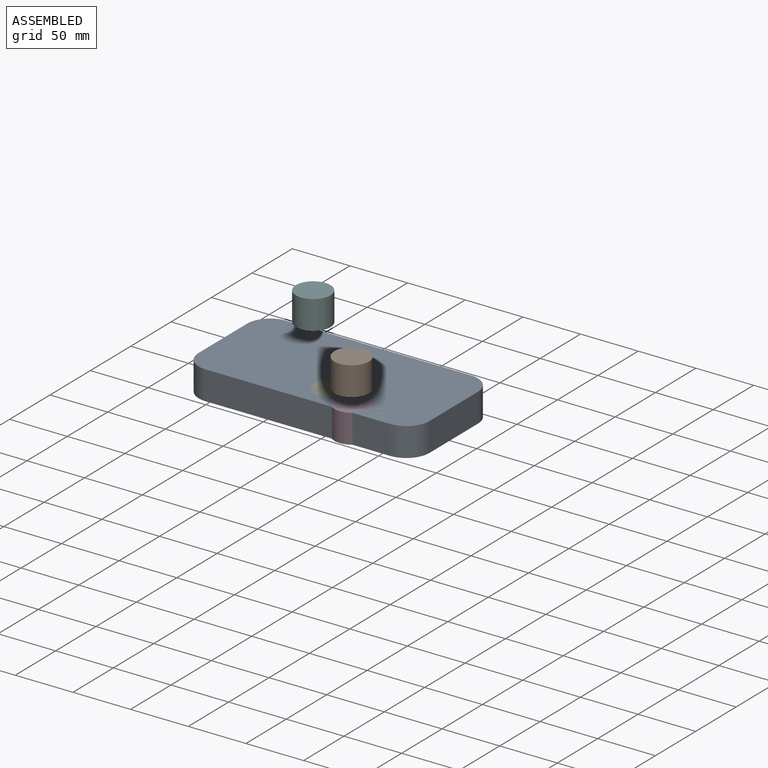
[diagram: assembled view]
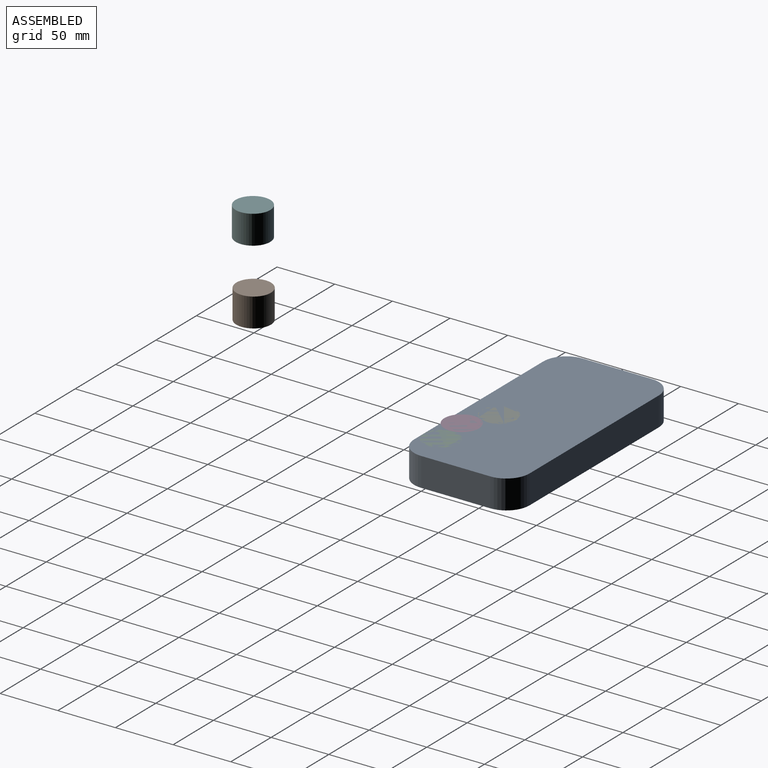
[diagram: assembled view, second angle]
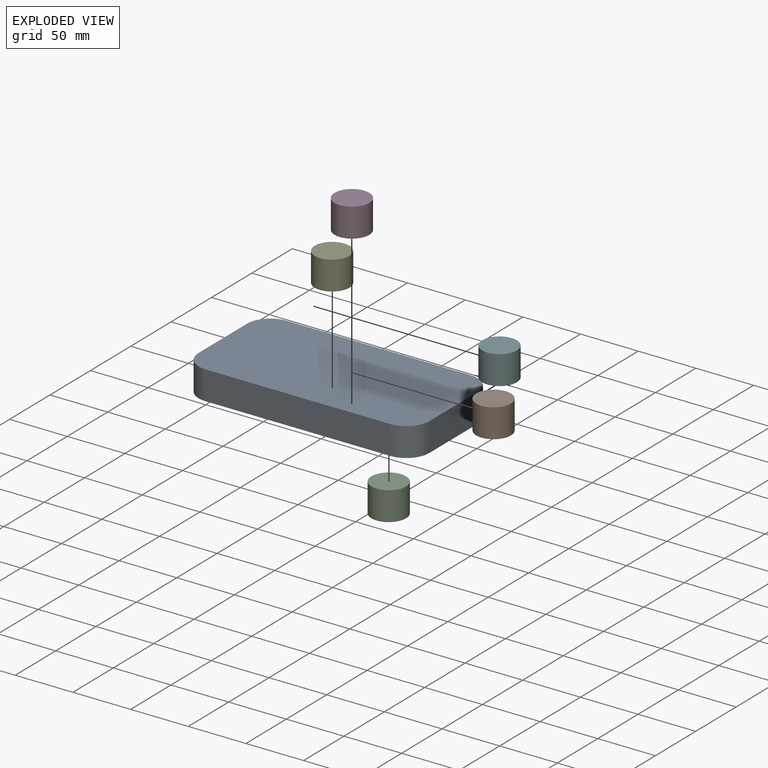
[diagram: exploded view]
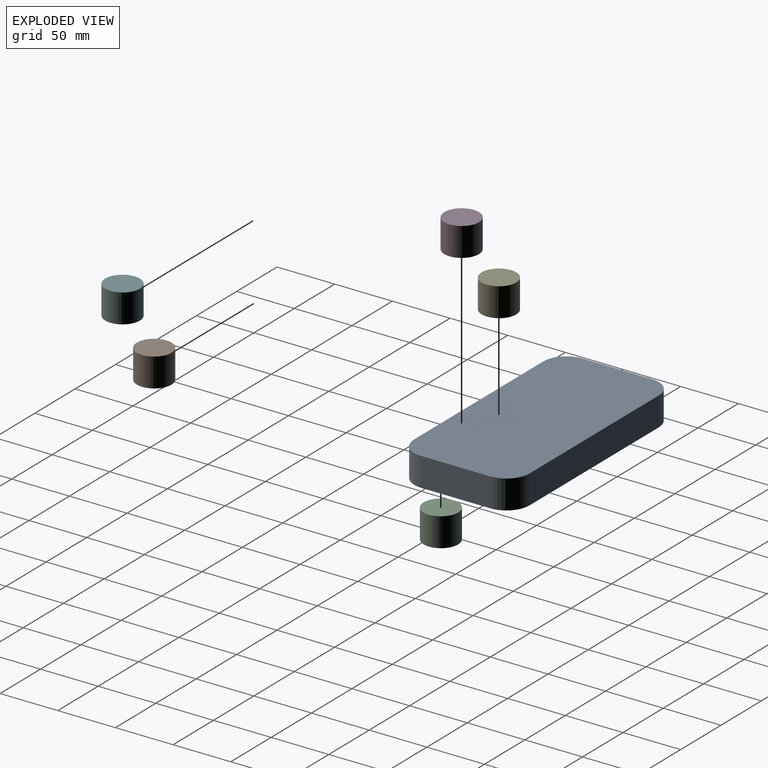
[diagram: exploded view, second angle]
ASSEMBLY  parts=6 mates=3
PART A: 10 faces, bbox 200x100x25 mm
  f0: plane 160x25mm, normal (0,-1,0), area 4000mm2, adj f1,f7,f8,f9
  f1: cylinder r=20mm len=25mm, axis (0,0,-1), area 785.4mm2, adj f0,f2,f8,f9
  f2: plane 60x25mm, normal (1,0,0), area 1500mm2, adj f1,f3,f8,f9
  f3: cylinder r=20mm len=25mm, axis (0,0,-1), area 785.4mm2, adj f2,f4,f8,f9
  f4: plane 160x25mm, normal (0,1,0), area 4000mm2, adj f3,f5,f8,f9
  f5: cylinder r=20mm len=25mm, axis (0,0,-1), area 785.4mm2, adj f4,f6,f8,f9
  f6: plane 60x25mm, normal (-1,0,0), area 1500mm2, adj f5,f7,f8,f9
  f7: cylinder r=20mm len=25mm, axis (0,0,-1), area 785.4mm2, adj f0,f6,f8,f9
  f8: plane 200x100mm, normal (0,0,1), area 19656.6mm2, adj f0,f1,f2,f3,f4,f5,f6,f7
  f9: plane 200x100mm, normal (0,0,-1), area 19656.6mm2, adj f0,f1,f2,f3,f4,f5,f6,f7
PART B: 3 faces, bbox 30x30x25 mm
  f0: cylinder r=15mm len=30mm, axis (0,0,-1), area 2356.2mm2, adj f1,f2
  f1: plane 30x30mm, normal (0,0,1), area 706.9mm2, adj f0
  f2: plane 30x30mm, normal (0,0,-1), area 706.9mm2, adj f0
PART C: same geometry as B
PART D: same geometry as B
PART E: same geometry as B
PART F: same geometry as B
PLACE A at identity
PLACE B t=(122.97,-159.13,106.11)mm
PLACE C rot(axis=(0,0,-1),0.8deg) t=(68.28,-35,0)mm
PLACE D rot(axis=(0,0,-1),117.1deg) t=(38.42,-37.94,0)mm
PLACE E rot(axis=(0,0,1),1.7deg) t=(11.69,-24.32,0)mm
PLACE F t=(100.93,-175.13,158.28)mm
MATE planar E.f0 <-> D.f0  axis (0,0,1) through (11.69,-24.32,25)mm
MATE planar C.f0 <-> D.f0  axis (0,0,1) through (68.28,-35,25)mm
MATE planar C.f0 <-> A.f8  axis (0,0,1) through (68.28,-35,25)mm
